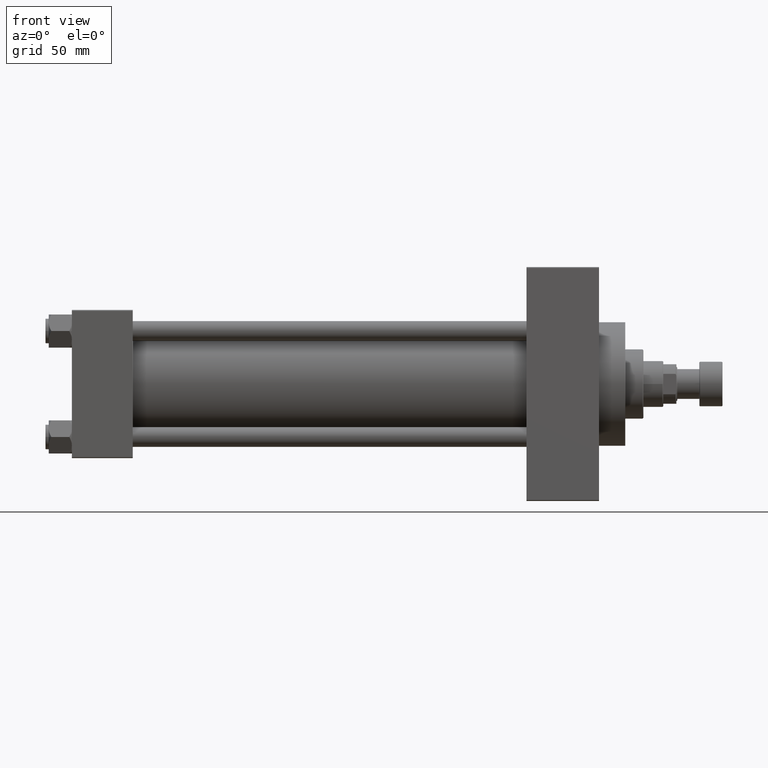
[diagram: clean part render]
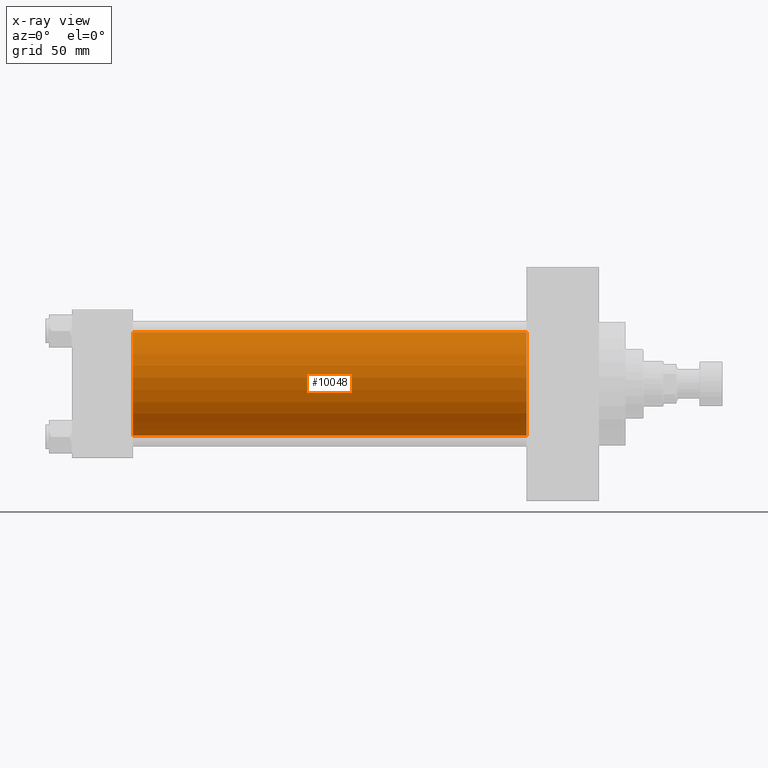
[diagram: x-ray — body ghosted, one internal face saturated and labeled with its STEP entity id]
A machine part, front view, then the same camera in x-ray: the body is ghosted and one INTERNAL B-rep face — a face not visible from any outside direction — is saturated and labeled: STEP entity #10048.
In plain terms, the highlighted cylindrical surface (partial cylindrical patch) has radius 31.5 mm, axis along (-1, -0, -0).
Its self-contained STEP definition (entity closure, byte-faithful):
#2179 = EDGE_CURVE ( 'NONE', #34392, #10478, #26920, .T. ) ;
#2846 = CARTESIAN_POINT ( 'NONE',  ( 37.00000000000000000, 1.255552203348951061E-15, -31.50000000000000000 ) ) ;
#4049 = DIRECTION ( 'NONE',  ( 0.000000000000000000, 0.000000000000000000, -1.000000000000000000 ) ) ;
#4437 = EDGE_LOOP ( 'NONE', ( #42150, #37337, #44550, #12489 ) ) ;
#4851 = CIRCLE ( 'NONE', #42582, 31.50000000000000000 ) ;
#6137 = AXIS2_PLACEMENT_3D ( 'NONE', #17847, #9893, #47029 ) ;
#9135 = VERTEX_POINT ( 'NONE', #38554 ) ;
#9893 = DIRECTION ( 'NONE',  ( 1.000000000000000000, 0.000000000000000000, 0.000000000000000000 ) ) ;
#10048 = ADVANCED_FACE ( 'NONE', ( #11852 ), #41279, .F. ) ;
#10478 = VERTEX_POINT ( 'NONE', #2846 ) ;
#10526 = CARTESIAN_POINT ( 'NONE',  ( 37.00000000000000000, -2.602085213965210642E-15, 31.50000000000000000 ) ) ;
#11286 = CARTESIAN_POINT ( 'NONE',  ( 275.9999999999999432, -2.602085213965210642E-15, 0.000000000000000000 ) ) ;
#11852 = FACE_OUTER_BOUND ( 'NONE', #4437, .T. ) ;
#12095 = DIRECTION ( 'NONE',  ( 0.000000000000000000, 0.000000000000000000, 1.000000000000000000 ) ) ;
#12489 = ORIENTED_EDGE ( 'NONE', *, *, #26071, .F. ) ;
#13387 = EDGE_CURVE ( 'NONE', #17642, #9135, #4851, .T. ) ;
#15890 = LINE ( 'NONE', #19975, #23921 ) ;
#17642 = VERTEX_POINT ( 'NONE', #42192 ) ;
#17847 = CARTESIAN_POINT ( 'NONE',  ( 37.00000000000000000, -2.602085213965210642E-15, 0.000000000000000000 ) ) ;
#19323 = DIRECTION ( 'NONE',  ( -1.000000000000000000, -0.000000000000000000, -0.000000000000000000 ) ) ;
#19975 = CARTESIAN_POINT ( 'NONE',  ( 275.9999999999999432, -2.602085213965210642E-15, 31.50000000000000000 ) ) ;
#22929 = CARTESIAN_POINT ( 'NONE',  ( 275.9999999999999432, -2.602085213965210642E-15, 0.000000000000000000 ) ) ;
#22993 = LINE ( 'NONE', #42051, #42695 ) ;
#23674 = EDGE_CURVE ( 'NONE', #9135, #10478, #22993, .T. ) ;
#23921 = VECTOR ( 'NONE', #38088, 1000.000000000000000 ) ;
#26071 = EDGE_CURVE ( 'NONE', #17642, #34392, #15890, .T. ) ;
#26920 = CIRCLE ( 'NONE', #6137, 31.50000000000000000 ) ;
#34392 = VERTEX_POINT ( 'NONE', #10526 ) ;
#36474 = AXIS2_PLACEMENT_3D ( 'NONE', #22929, #19323, #12095 ) ;
#37094 = DIRECTION ( 'NONE',  ( 1.000000000000000000, 0.000000000000000000, 0.000000000000000000 ) ) ;
#37337 = ORIENTED_EDGE ( 'NONE', *, *, #23674, .T. ) ;
#38088 = DIRECTION ( 'NONE',  ( -1.000000000000000000, -0.000000000000000000, -0.000000000000000000 ) ) ;
#38554 = CARTESIAN_POINT ( 'NONE',  ( 275.9999999999999432, 1.255552203348951061E-15, -31.50000000000000000 ) ) ;
#41279 = CYLINDRICAL_SURFACE ( 'NONE', #36474, 31.50000000000000000 ) ;
#42051 = CARTESIAN_POINT ( 'NONE',  ( 275.9999999999999432, 1.255552203348951061E-15, -31.50000000000000000 ) ) ;
#42150 = ORIENTED_EDGE ( 'NONE', *, *, #13387, .T. ) ;
#42192 = CARTESIAN_POINT ( 'NONE',  ( 275.9999999999999432, -2.602085213965210642E-15, 31.50000000000000000 ) ) ;
#42582 = AXIS2_PLACEMENT_3D ( 'NONE', #11286, #37094, #4049 ) ;
#42695 = VECTOR ( 'NONE', #45661, 1000.000000000000000 ) ;
#44550 = ORIENTED_EDGE ( 'NONE', *, *, #2179, .F. ) ;
#45661 = DIRECTION ( 'NONE',  ( -1.000000000000000000, -0.000000000000000000, -0.000000000000000000 ) ) ;
#47029 = DIRECTION ( 'NONE',  ( 0.000000000000000000, 0.000000000000000000, -1.000000000000000000 ) ) ;